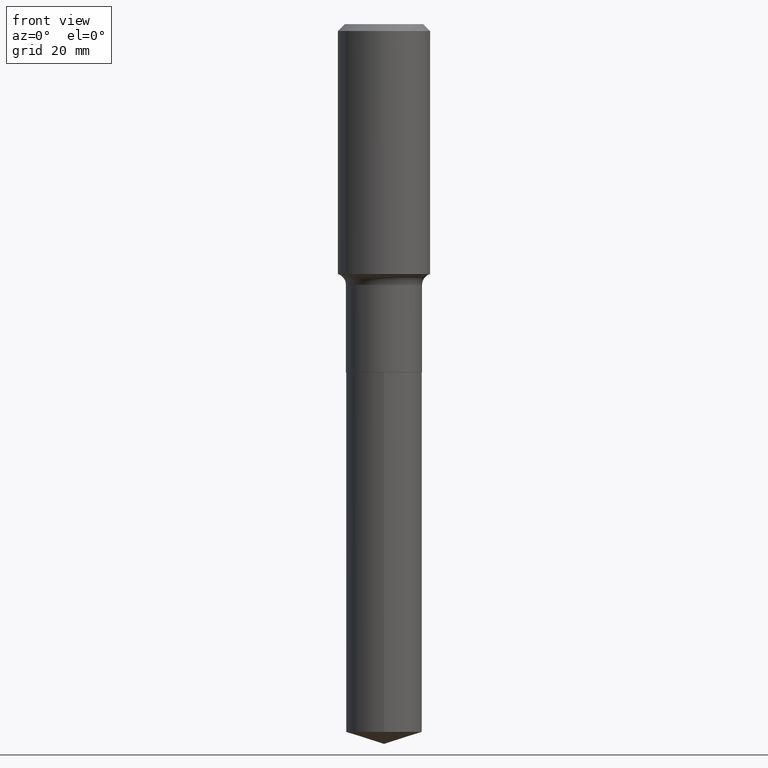
[diagram: clean part render]
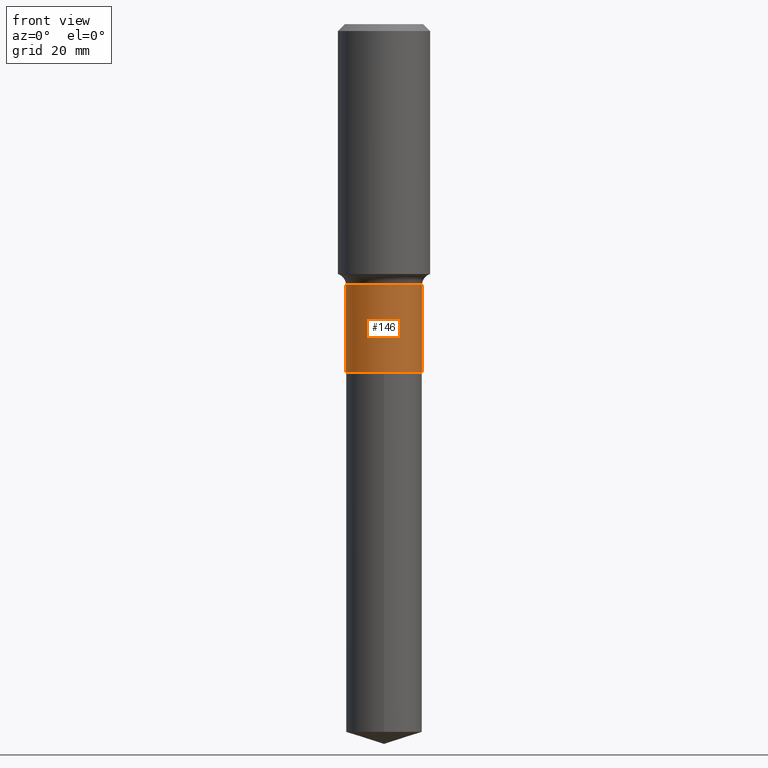
[diagram: same view with one face highlighted and labeled with its STEP entity id]
A machine part, front view. The second image highlights one B-rep face of the part: STEP entity #146.
In plain terms, the highlighted cylindrical surface (partial cylindrical patch) has radius 6.5481 mm, axis along (-0, 0, 1).
Its self-contained STEP definition (entity closure, byte-faithful):
#14 = DIRECTION ( 'NONE',  ( -2.445468806185136597E-29, 3.491481338843145583E-15, 1.000000000000000000 ) ) ;
#20 = VERTEX_POINT ( 'NONE', #185 ) ;
#43 = VERTEX_POINT ( 'NONE', #148 ) ;
#53 = ORIENTED_EDGE ( 'NONE', *, *, #329, .F. ) ;
#62 = VECTOR ( 'NONE', #349, 39.37007874015748143 ) ;
#70 = EDGE_CURVE ( 'NONE', #43, #290, #371, .T. ) ;
#77 = AXIS2_PLACEMENT_3D ( 'NONE', #255, #171, #476 ) ;
#99 = ORIENTED_EDGE ( 'NONE', *, *, #70, .T. ) ;
#109 = CIRCLE ( 'NONE', #77, 0.2577999999999999736 ) ;
#111 = FACE_OUTER_BOUND ( 'NONE', #247, .T. ) ;
#114 = CARTESIAN_POINT ( 'NONE',  ( 0.2577999999999999181, -7.967909563373935033E-15, -1.766499999999999959 ) ) ;
#146 = ADVANCED_FACE ( 'NONE', ( #111 ), #226, .T. ) ;
#148 = CARTESIAN_POINT ( 'NONE',  ( 0.2577999999999999736, -1.003626310850461608E-14, -2.358900000000000219 ) ) ;
#151 = CARTESIAN_POINT ( 'NONE',  ( 0.000000000000000000, 0.000000000000000000, 0.000000000000000000 ) ) ;
#168 = DIRECTION ( 'NONE',  ( 1.000000000000000000, -6.982962677686265922E-15, 0.000000000000000000 ) ) ;
#171 = DIRECTION ( 'NONE',  ( -2.445468806185136597E-29, 3.491481338843145583E-15, 1.000000000000000000 ) ) ;
#185 = CARTESIAN_POINT ( 'NONE',  ( -0.2577999999999999181, -5.370099384842219482E-15, -1.766499999999999959 ) ) ;
#202 = CARTESIAN_POINT ( 'NONE',  ( 4.319920646126043085E-29, -6.167701785066416655E-15, -1.766499999999999959 ) ) ;
#212 = CARTESIAN_POINT ( 'NONE',  ( -0.2578000000000000291, -5.370099384842219482E-15, -2.358900000000000219 ) ) ;
#214 = EDGE_CURVE ( 'NONE', #397, #20, #431, .T. ) ;
#226 = CYLINDRICAL_SURFACE ( 'NONE', #415, 0.2577999999999999181 ) ;
#247 = EDGE_LOOP ( 'NONE', ( #484, #427, #99, #53 ) ) ;
#252 = AXIS2_PLACEMENT_3D ( 'NONE', #202, #14, #168 ) ;
#255 = CARTESIAN_POINT ( 'NONE',  ( 5.768616366910118833E-29, -8.236055330197096914E-15, -2.358900000000000219 ) ) ;
#260 = DIRECTION ( 'NONE',  ( -2.445468806185136877E-29, 3.491481338843145188E-15, 1.000000000000000000 ) ) ;
#262 = DIRECTION ( 'NONE',  ( 1.000000000000000000, -6.982962677686267499E-15, 4.876176775795936353E-29 ) ) ;
#290 = VERTEX_POINT ( 'NONE', #114 ) ;
#311 = VECTOR ( 'NONE', #260, 39.37007874015748143 ) ;
#329 = EDGE_CURVE ( 'NONE', #20, #290, #461, .T. ) ;
#349 = DIRECTION ( 'NONE',  ( -2.445468806185136877E-29, 3.491481338843145188E-15, 1.000000000000000000 ) ) ;
#354 = CARTESIAN_POINT ( 'NONE',  ( -0.2577999999999999181, 1.831779172789537697E-15, -1.268101466267714406E-29 ) ) ;
#371 = LINE ( 'NONE', #452, #311 ) ;
#397 = VERTEX_POINT ( 'NONE', #212 ) ;
#415 = AXIS2_PLACEMENT_3D ( 'NONE', #151, #451, #262 ) ;
#424 = EDGE_CURVE ( 'NONE', #397, #43, #109, .T. ) ;
#427 = ORIENTED_EDGE ( 'NONE', *, *, #424, .T. ) ;
#431 = LINE ( 'NONE', #354, #62 ) ;
#451 = DIRECTION ( 'NONE',  ( -2.445468806185136597E-29, 3.491481338843145583E-15, 1.000000000000000000 ) ) ;
#452 = CARTESIAN_POINT ( 'NONE',  ( 0.2577999999999999181, -1.800207778307519167E-15, 1.257078372800191925E-29 ) ) ;
#461 = CIRCLE ( 'NONE', #252, 0.2577999999999999181 ) ;
#476 = DIRECTION ( 'NONE',  ( 1.000000000000000000, -6.982962677686264344E-15, 0.000000000000000000 ) ) ;
#484 = ORIENTED_EDGE ( 'NONE', *, *, #214, .F. ) ;